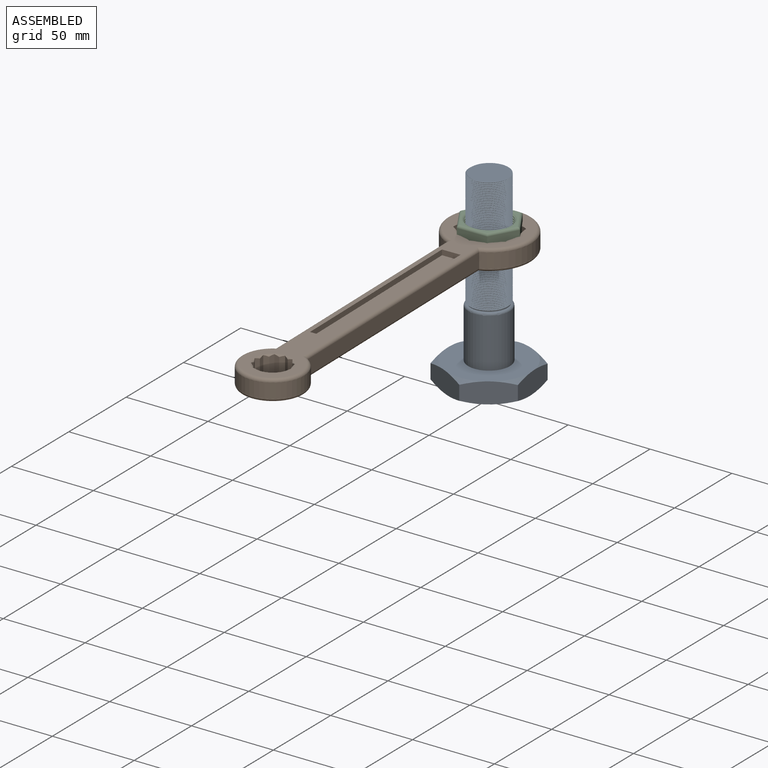
[diagram: assembled view]
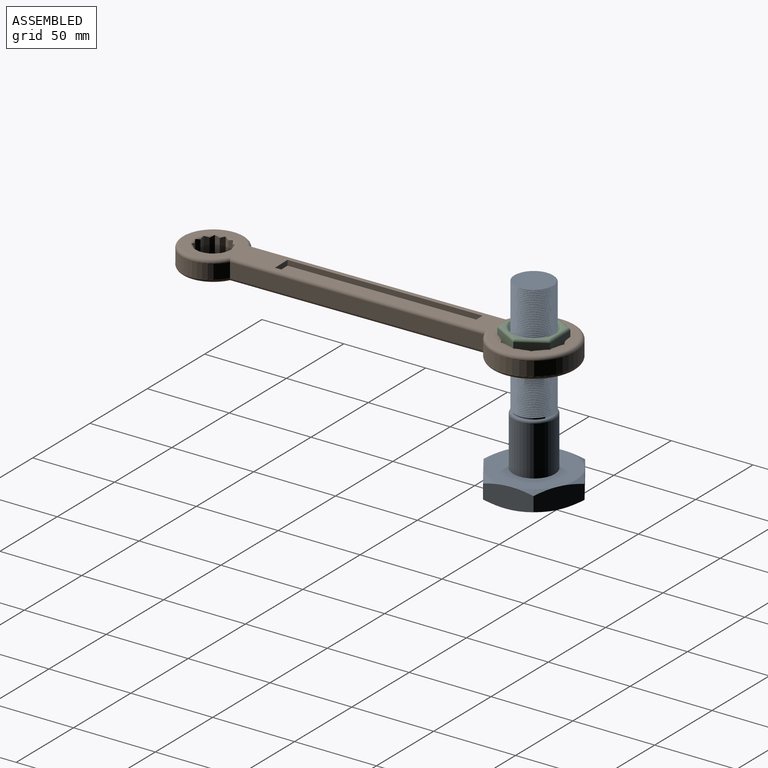
[diagram: assembled view, second angle]
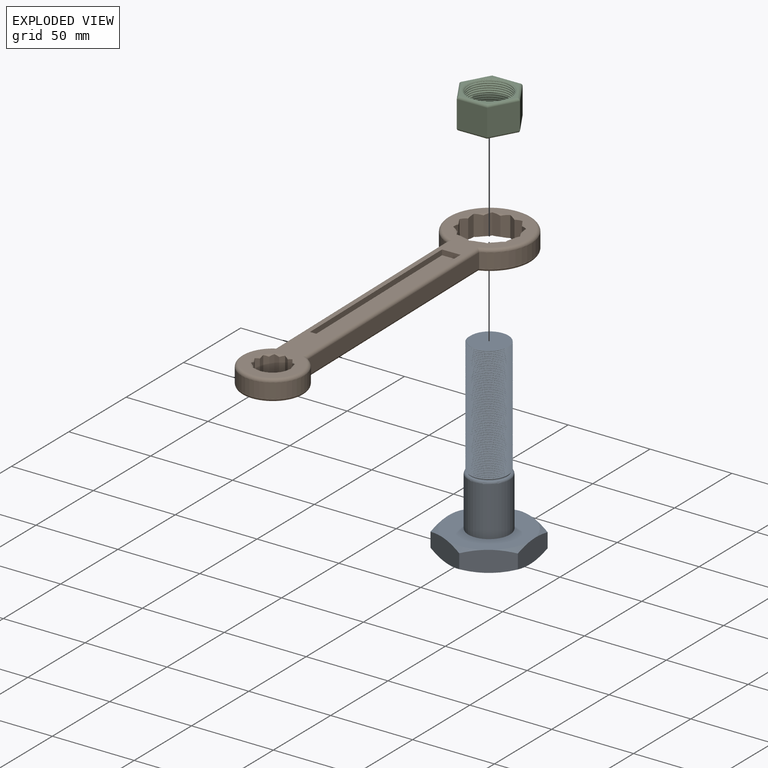
[diagram: exploded view]
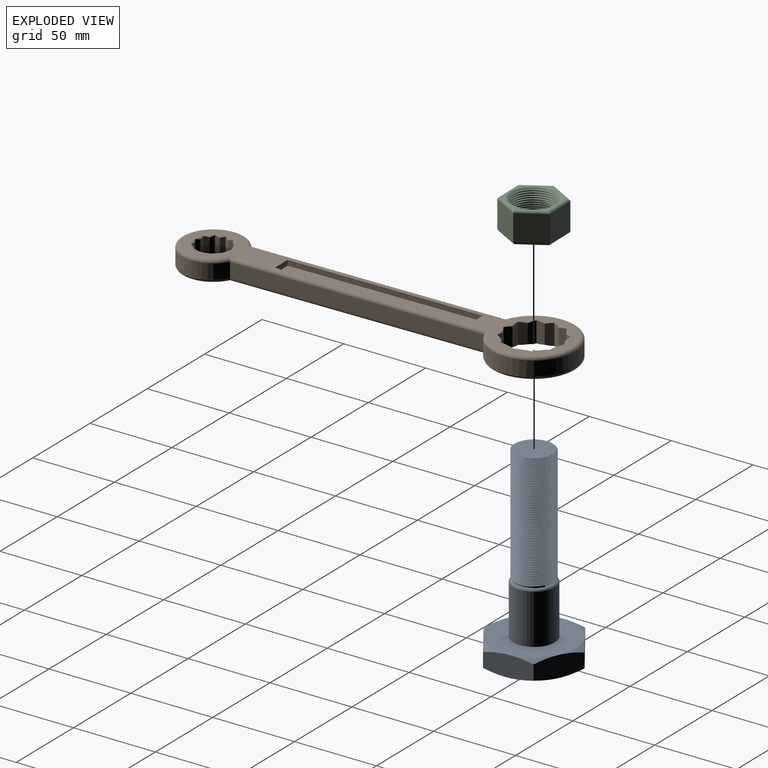
[diagram: exploded view, second angle]
ASSEMBLY  parts=3 mates=2
PART A: 28 faces, bbox 60.3x118.5x60.4 mm
  f0: plane 27.17x16.44mm, normal (0.5,0,-0.87), area 334.7mm2, adj f1,f5,f6,f11,f16,f18,f26,f27
  f1: plane 31.12x14.5mm, normal (1,0,0), area 334.7mm2, adj f0,f2,f6,f11,f24,f25,f26,f27
  f2: plane 27.17x16.44mm, normal (0.5,0,0.87), area 334.7mm2, adj f1,f3,f6,f11,f22,f23,f24,f25
  f3: plane 27.17x16.44mm, normal (-0.5,0,0.87), area 334.7mm2, adj f2,f4,f6,f11,f20,f21,f22,f23
  f4: plane 31.12x14.5mm, normal (-1,0,0), area 334.7mm2, adj f3,f5,f6,f11,f17,f19,f20,f21
  f5: plane 27.17x16.44mm, normal (-0.5,0,-0.87), area 334.7mm2, adj f0,f4,f6,f11,f16,f17,f18,f19
  f6: plane 50.95x50.8mm, normal (0,1,0), area 1530.6mm2, adj f0,f1,f2,f3,f4,f5,f12,f18
  f7: cylinder r=11.16mm len=71.73mm, axis (0,-1,0), area 1669.5mm2, adj f8,f9,f10,f14,f15
  f8: bspline ~72.17x27.45mm, area 4530.8mm2, adj f7,f9,f10,f14,f15
  f9: bspline ~71.85x27.45mm, area 4476.9mm2, adj f7,f8,f14,f15
  f10: plane 22.35x22.35mm, normal (0,1,0), area 0.8mm2, adj f7,f8,f13,f14
  f11: plane 50.95x50.8mm, normal (0,-1,0), area 2037.3mm2, adj f0,f1,f2,f3,f4,f5,f16,f17
  f12: cylinder r=12.7mm len=30.23mm, axis (0,-1,0), area 2411.9mm2, adj f6,f13
  f13: torus R=11.18mm, axis (0,1,0), area 182.7mm2, adj f10,f12
  f14: plane 0.83x0.72mm, normal (0,0,1), area 0.3mm2, adj f7,f8,f9,f10
  f15: plane 23.49x23.48mm, normal (0,1,0), area 414.2mm2, adj f7,f8,f9
  f16: cone r=38.09mm half-angle=63.3deg, axis (0,1,0), area 51.8mm2, adj f0,f5,f11
  f17: cone r=38.09mm half-angle=63.3deg, axis (0,1,0), area 51.8mm2, adj f4,f5,f11
  f18: cone r=38.09mm half-angle=63.3deg, axis (0,-1,0), area 51.8mm2, adj f0,f5,f6
  f19: cone r=38.09mm half-angle=63.3deg, axis (0,-1,0), area 51.8mm2, adj f4,f5,f6
  f20: cone r=38.09mm half-angle=63.3deg, axis (0,1,0), area 51.8mm2, adj f3,f4,f11
  f21: cone r=38.09mm half-angle=63.3deg, axis (0,-1,0), area 51.8mm2, adj f3,f4,f6
  f22: cone r=38.09mm half-angle=63.3deg, axis (0,1,0), area 51.8mm2, adj f2,f3,f11
  f23: cone r=38.09mm half-angle=63.3deg, axis (0,-1,0), area 51.8mm2, adj f2,f3,f6
  f24: cone r=38.09mm half-angle=63.3deg, axis (0,1,0), area 51.8mm2, adj f1,f2,f11
  f25: cone r=38.09mm half-angle=63.3deg, axis (0,-1,0), area 51.8mm2, adj f1,f2,f6
  f26: cone r=38.09mm half-angle=63.3deg, axis (0,1,0), area 51.8mm2, adj f0,f1,f11
  f27: cone r=38.09mm half-angle=63.3deg, axis (0,-1,0), area 51.8mm2, adj f0,f1,f6
PART B: 102 faces, bbox 241.9x55.2x12.9 mm
  f0: torus R=17.91mm, axis (0,0,1), area 6.3mm2, adj f23,f78,f79
  f1: torus R=17.91mm, axis (0,0,1), area 6.3mm2, adj f23,f80,f81
  f2: torus R=17.91mm, axis (0,0,1), area 6.3mm2, adj f23,f82,f83
  f3: torus R=17.91mm, axis (0,0,1), area 6.3mm2, adj f23,f84,f85
  f4: torus R=17.91mm, axis (0,0,1), area 6.3mm2, adj f23,f86,f87
  f5: torus R=17.91mm, axis (0,0,1), area 6.3mm2, adj f23,f88,f89
  f6: torus R=17.91mm, axis (0,0,1), area 6.3mm2, adj f23,f90,f91
  f7: torus R=17.91mm, axis (0,0,1), area 6.3mm2, adj f23,f92,f93
  f8: torus R=17.91mm, axis (0,0,1), area 6.3mm2, adj f23,f94,f95
  f9: torus R=17.91mm, axis (0,0,1), area 6.3mm2, adj f23,f96,f97
  f10: torus R=17.91mm, axis (0,0,1), area 6.3mm2, adj f23,f98,f99
  f11: torus R=17.91mm, axis (0,0,1), area 6.3mm2, adj f24,f78,f79
  f12: torus R=17.91mm, axis (0,0,1), area 6.3mm2, adj f24,f80,f81
  f13: torus R=17.91mm, axis (0,0,1), area 6.3mm2, adj f24,f82,f83
  f14: torus R=17.91mm, axis (0,0,1), area 6.3mm2, adj f24,f84,f85
  f15: torus R=17.91mm, axis (0,0,1), area 6.3mm2, adj f24,f86,f87
  f16: torus R=17.91mm, axis (0,0,1), area 6.3mm2, adj f24,f88,f89
  f17: torus R=17.91mm, axis (0,0,1), area 6.3mm2, adj f24,f90,f91
  f18: torus R=17.91mm, axis (0,0,1), area 6.3mm2, adj f24,f92,f93
  f19: torus R=17.91mm, axis (0,0,1), area 6.3mm2, adj f24,f94,f95
  f20: torus R=17.91mm, axis (0,0,1), area 6.3mm2, adj f24,f96,f97
  f21: torus R=17.91mm, axis (0,0,1), area 6.3mm2, adj f24,f98,f99
  f22: torus R=17.91mm, axis (0,0,1), area 6.3mm2, adj f24,f100,f101
  f23: plane 234.03x46.74mm, normal (0,0,-1), area 1724.5mm2, adj f0,f1,f2,f3,f4,f5,f6,f7
  f24: plane 234.03x46.74mm, normal (0,0,1), area 2198.7mm2, adj f11,f12,f13,f14,f15,f16,f17,f18
  f25: cylinder r=19.05mm len=38.1mm, axis (0,0,-1), area 860.6mm2, adj f26,f28,f40,f50
  f26: plane 153.6x8.64mm, normal (0,-1,0), area 1326.5mm2, adj f25,f27,f43,f51
  f27: cylinder r=25.4mm len=50.8mm, axis (0,0,-1), area 1208.8mm2, adj f26,f28,f42,f53
  f28: plane 153.68x8.64mm, normal (0,1,0), area 1327.2mm2, adj f25,f27,f39,f52
  f29: plane 117.85x3.18mm, normal (0,-1,0), area 374.2mm2, adj f24,f30,f32,f33
  f30: plane 11.2x3.18mm, normal (1,0,0), area 35.6mm2, adj f24,f29,f31,f33
  f31: plane 117.85x3.18mm, normal (0,1,0), area 374.2mm2, adj f24,f30,f32,f33
  f32: plane 11.2x3.18mm, normal (-1,0,0), area 35.6mm2, adj f24,f29,f31,f33
  f33: plane 117.85x11.2mm, normal (0,0,1), area 1320mm2, adj f29,f30,f31,f32
  f34: plane 118.16x1.14mm, normal (0,1,0), area 135.1mm2, adj f35,f37,f38,f41
  f35: plane 10.88x1.14mm, normal (1,0,0), area 12.4mm2, adj f34,f36,f38,f44
  f36: plane 118.16x1.14mm, normal (0,-1,0), area 135.1mm2, adj f35,f37,f38,f46
  f37: plane 10.88x1.14mm, normal (-1,0,0), area 12.4mm2, adj f34,f36,f38,f45
  f38: plane 118.16x10.88mm, normal (0,0,-1), area 1285.9mm2, adj f34,f35,f36,f37
  f39: cylinder r=2.03mm len=156.3mm, axis (-1,0,0), area 493.5mm2, adj f23,f28,f40,f42
  f40: torus R=17.02mm, axis (0,0,1), area 308.4mm2, adj f23,f25,f39,f43
  f41: cylinder r=2.03mm len=121.96mm, axis (-1,0,0), area 365.6mm2, adj f34,f43,f44,f45
  f42: torus R=23.37mm, axis (0,0,1), area 437mm2, adj f23,f27,f39,f43
  f43: cylinder r=2.03mm len=156.23mm, axis (1,0,0), area 477mm2, adj f23,f26,f40,f41,f42,f44,f45
  f44: cylinder r=2.03mm len=14.81mm, axis (0,1,0), area 39.4mm2, adj f23,f35,f41,f43,f46
  f45: cylinder r=2.03mm len=14.81mm, axis (0,-1,0), area 39.4mm2, adj f23,f37,f41,f43,f46
  f46: cylinder r=2.03mm len=122.23mm, axis (1,0,0), area 381.9mm2, adj f23,f36,f44,f45
  f47: torus R=17.91mm, axis (0,0,1), area 6.3mm2, adj f23,f100,f101
  f48: torus R=11.56mm, axis (0,0,1), area 87.9mm2, adj f23,f54,f55,f56,f57,f58,f59,f60
  f49: torus R=11.56mm, axis (0,0,1), area 87.9mm2, adj f24,f54,f55,f56,f57,f58,f59,f60
  f50: torus R=17.02mm, axis (0,0,1), area 308.4mm2, adj f24,f25,f51,f52
  f51: cylinder r=2.03mm len=156.23mm, axis (-1,0,0), area 493.3mm2, adj f24,f26,f50,f53
  f52: cylinder r=2.03mm len=156.3mm, axis (1,0,0), area 493.5mm2, adj f24,f28,f50,f53
  f53: torus R=23.37mm, axis (0,0,1), area 437mm2, adj f24,f27,f51,f52
  f54: plane 12.66x3.07mm, normal (0,1,0), area 34.9mm2, adj f48,f49,f55,f77
  f55: plane 12.67x2.68mm, normal (0.5,0.87,0), area 34.9mm2, adj f48,f49,f54,f56
  f56: plane 12.67x2.68mm, normal (-0.5,0.87,0), area 34.9mm2, adj f48,f49,f55,f57
  f57: plane 12.67x3.08mm, normal (0,1,0), area 34.9mm2, adj f48,f49,f56,f58
  f58: plane 12.67x2.68mm, normal (-0.87,0.5,0), area 34.9mm2, adj f48,f49,f57,f59
  f59: plane 12.67x2.68mm, normal (-0.5,0.87,0), area 34.9mm2, adj f48,f49,f58,f60
  f60: plane 12.66x3.07mm, normal (-1,0,0), area 34.9mm2, adj f48,f49,f59,f61
  f61: plane 12.67x2.68mm, normal (-0.87,0.5,0), area 34.9mm2, adj f48,f49,f60,f62
  f62: plane 12.67x2.68mm, normal (-0.87,-0.5,0), area 34.9mm2, adj f48,f49,f61,f63
  f63: plane 12.67x3.08mm, normal (-1,0,0), area 34.9mm2, adj f48,f49,f62,f64
  f64: plane 12.67x2.68mm, normal (-0.5,-0.87,0), area 34.9mm2, adj f48,f49,f63,f65
  f65: plane 12.67x2.68mm, normal (-0.87,-0.5,0), area 34.9mm2, adj f48,f49,f64,f66
  f66: plane 12.67x3.08mm, normal (0,-1,0), area 34.9mm2, adj f48,f49,f65,f67
  f67: plane 12.67x2.68mm, normal (-0.5,-0.87,0), area 34.9mm2, adj f48,f49,f66,f68
  f68: plane 12.67x2.68mm, normal (0.5,-0.87,0), area 34.9mm2, adj f48,f49,f67,f69
  f69: plane 12.66x3.07mm, normal (0,-1,0), area 34.9mm2, adj f48,f49,f68,f70
  f70: plane 12.67x2.68mm, normal (0.87,-0.5,0), area 34.9mm2, adj f48,f49,f69,f71
  f71: plane 12.67x2.68mm, normal (0.5,-0.87,0), area 34.9mm2, adj f48,f49,f70,f72
  f72: plane 12.67x3.08mm, normal (1,0,0), area 34.9mm2, adj f48,f49,f71,f73
  f73: plane 12.67x2.68mm, normal (0.87,-0.5,0), area 34.9mm2, adj f48,f49,f72,f74
  f74: plane 12.67x2.68mm, normal (0.87,0.5,0), area 34.9mm2, adj f48,f49,f73,f75
  f75: plane 12.66x3.07mm, normal (1,0,0), area 34.9mm2, adj f48,f49,f74,f76
  f76: plane 12.67x2.68mm, normal (0.5,0.87,0), area 34.9mm2, adj f48,f49,f75,f77
  f77: plane 12.67x2.68mm, normal (0.87,0.5,0), area 34.9mm2, adj f48,f49,f54,f76
  f78: plane 12.87x5.08mm, normal (-1,0,0), area 60.6mm2, adj f0,f11,f23,f24,f79,f101
  f79: plane 12.87x4.42mm, normal (-0.87,0.5,0), area 60.6mm2, adj f0,f11,f23,f24,f78,f80
  f80: plane 12.87x4.42mm, normal (-0.87,-0.5,0), area 60.6mm2, adj f1,f12,f23,f24,f79,f81
  f81: plane 12.87x5.08mm, normal (-1,0,0), area 60.6mm2, adj f1,f12,f23,f24,f80,f82
  f82: plane 12.87x4.42mm, normal (-0.5,-0.87,0), area 60.6mm2, adj f2,f13,f23,f24,f81,f83
  f83: plane 12.87x4.42mm, normal (-0.87,-0.5,0), area 60.6mm2, adj f2,f13,f23,f24,f82,f84
  f84: plane 12.87x5.08mm, normal (0,-1,0), area 60.6mm2, adj f3,f14,f23,f24,f83,f85
  f85: plane 12.87x4.42mm, normal (-0.5,-0.87,0), area 60.6mm2, adj f3,f14,f23,f24,f84,f86
  f86: plane 12.87x4.42mm, normal (0.5,-0.87,0), area 60.6mm2, adj f4,f15,f23,f24,f85,f87
  f87: plane 12.87x5.08mm, normal (0,-1,0), area 60.6mm2, adj f4,f15,f23,f24,f86,f88
  f88: plane 12.87x4.42mm, normal (0.87,-0.5,0), area 60.6mm2, adj f5,f16,f23,f24,f87,f89
  f89: plane 12.87x4.42mm, normal (0.5,-0.87,0), area 60.6mm2, adj f5,f16,f23,f24,f88,f90
  f90: plane 12.87x5.08mm, normal (1,0,0), area 60.6mm2, adj f6,f17,f23,f24,f89,f91
  f91: plane 12.87x4.42mm, normal (0.87,-0.5,0), area 60.6mm2, adj f6,f17,f23,f24,f90,f92
  f92: plane 12.87x4.42mm, normal (0.87,0.5,0), area 60.6mm2, adj f7,f18,f23,f24,f91,f93
  f93: plane 12.87x5.08mm, normal (1,0,0), area 60.6mm2, adj f7,f18,f23,f24,f92,f94
  f94: plane 12.87x4.42mm, normal (0.5,0.87,0), area 60.6mm2, adj f8,f19,f23,f24,f93,f95
  f95: plane 12.87x4.42mm, normal (0.87,0.5,0), area 60.6mm2, adj f8,f19,f23,f24,f94,f96
  f96: plane 12.87x5.08mm, normal (0,1,0), area 60.6mm2, adj f9,f20,f23,f24,f95,f97
  f97: plane 12.87x4.42mm, normal (0.5,0.87,0), area 60.6mm2, adj f9,f20,f23,f24,f96,f98
  f98: plane 12.87x4.42mm, normal (-0.5,0.87,0), area 60.6mm2, adj f10,f21,f23,f24,f97,f99
  f99: plane 12.87x5.08mm, normal (0,1,0), area 60.6mm2, adj f10,f21,f23,f24,f98,f100
  f100: plane 12.87x4.42mm, normal (-0.87,0.5,0), area 60.6mm2, adj f22,f23,f24,f47,f99,f101
  f101: plane 12.87x4.42mm, normal (-0.5,0.87,0), area 60.6mm2, adj f22,f23,f24,f47,f78,f100
PART C: 39 faces, bbox 33.1x36.7x19.2 mm
  f0: plane 16x15.88mm, normal (0.5,-0.87,0), area 293.3mm2, adj f1,f18,f24,f32
  f1: plane 18.33x16mm, normal (1,0,0), area 293.3mm2, adj f0,f2,f22,f30
  f2: plane 16x15.88mm, normal (0.5,0.87,0), area 293.3mm2, adj f1,f3,f23,f31
  f3: plane 16x15.88mm, normal (-0.5,0.87,0), area 293.3mm2, adj f2,f4,f25,f33
  f4: plane 18.33x16mm, normal (-1,0,0), area 293.3mm2, adj f3,f18,f27,f35
  f5: cylinder r=12.7mm len=25.4mm, axis (0,0,-1), area 60.6mm2, adj f6,f21,f36,f37
  f6: cylinder r=12.7mm len=25.4mm, axis (0,0,-1), area 35.3mm2, adj f5,f7,f37,f38
  f7: cylinder r=12.7mm len=25.4mm, axis (0,0,-1), area 35.3mm2, adj f6,f8,f37,f38
  f8: cylinder r=12.7mm len=25.4mm, axis (0,0,-1), area 35.3mm2, adj f7,f9,f37,f38
  f9: cylinder r=12.7mm len=25.4mm, axis (0,0,-1), area 35.4mm2, adj f8,f10,f37,f38
  f10: cylinder r=12.7mm len=25.4mm, axis (0,0,-1), area 35.3mm2, adj f9,f11,f37,f38
  f11: cylinder r=12.7mm len=25.4mm, axis (0,0,-1), area 35.4mm2, adj f10,f12,f37,f38
  f12: cylinder r=12.7mm len=25.4mm, axis (0,0,-1), area 35.3mm2, adj f11,f13,f37,f38
  f13: cylinder r=12.7mm len=25.4mm, axis (0,0,-1), area 35.3mm2, adj f12,f14,f37,f38
  f14: cylinder r=12.7mm len=25.4mm, axis (0,0,-1), area 35.4mm2, adj f13,f15,f37,f38
  f15: cylinder r=12.7mm len=25.4mm, axis (0,0,-1), area 35.3mm2, adj f14,f16,f37,f38
  f16: cylinder r=12.7mm len=25.4mm, axis (0,0,-1), area 35.3mm2, adj f15,f17,f37,f38
  f17: cylinder r=12.7mm len=25.4mm, axis (0,0,-1), area 23.9mm2, adj f16,f28,f37,f38
  f18: plane 16x15.88mm, normal (-0.5,-0.87,0), area 293.3mm2, adj f0,f4,f26,f34
  f19: plane 33.14x28.7mm, normal (0,0,1), area 77.8mm2, adj f29,f30,f31,f32,f33,f34,f35
  f20: plane 33.14x28.7mm, normal (0,0,-1), area 77.8mm2, adj f21,f22,f23,f24,f25,f26,f27
  f21: torus R=14.22mm, axis (0,0,1), area 199.4mm2, adj f5,f20
  f22: cylinder r=1.52mm len=18.33mm, axis (0,1,0), area 41.8mm2, adj f1,f20,f23,f24
  f23: cylinder r=1.52mm len=16.64mm, axis (-0.87,0.5,0), area 41.8mm2, adj f2,f20,f22,f25
  f24: cylinder r=1.52mm len=16.64mm, axis (0.87,0.5,0), area 41.8mm2, adj f0,f20,f22,f26
  f25: cylinder r=1.52mm len=16.64mm, axis (-0.87,-0.5,0), area 41.8mm2, adj f3,f20,f23,f27
  f26: cylinder r=1.52mm len=16.64mm, axis (0.87,-0.5,0), area 41.8mm2, adj f18,f20,f24,f27
  f27: cylinder r=1.52mm len=18.33mm, axis (0,-1,0), area 41.8mm2, adj f4,f20,f25,f26
  f28: torus R=14.22mm, axis (0,0,1), area 14.4mm2, adj f17,f29,f37,f38
  f29: torus R=14.22mm, axis (0,0,1), area 134.8mm2, adj f19,f28,f37,f38
  f30: cylinder r=1.52mm len=18.33mm, axis (0,-1,0), area 41.8mm2, adj f1,f19,f31,f32
  f31: cylinder r=1.52mm len=16.64mm, axis (0.87,-0.5,0), area 41.8mm2, adj f2,f19,f30,f33
  f32: cylinder r=1.52mm len=16.64mm, axis (-0.87,-0.5,0), area 41.8mm2, adj f0,f19,f30,f34
  f33: cylinder r=1.52mm len=16.64mm, axis (0.87,0.5,0), area 41.8mm2, adj f3,f19,f31,f35
  f34: cylinder r=1.52mm len=16.64mm, axis (-0.87,0.5,0), area 41.8mm2, adj f18,f19,f32,f35
  f35: cylinder r=1.52mm len=18.33mm, axis (0,1,0), area 41.8mm2, adj f4,f19,f33,f34
  f36: plane 0.83x0.72mm, normal (0,1,0), area 0.3mm2, adj f5,f37,f38
  f37: bspline ~30.98x26.83mm, area 891mm2, adj f5,f6,f7,f8,f9,f10,f11,f12
  f38: bspline ~26.83x26.67mm, area 862.8mm2, adj f6,f7,f8,f9,f10,f11,f12,f13
PLACE A rot(axis=(0.75,0.47,0.47),106.5deg) t=(8.6,-2.67,-133.64)mm fixed
PLACE B rot(axis=(0,0,1),90.9deg) t=(10.45,-98.86,-73.33)mm
PLACE C rot(axis=(0,0,1),90.9deg) t=(8.91,-2.58,-65.07)mm
MATE fastened B.f27 <-> C.f5  axis (0,0,1) through (8.91,-2.58,-60.63)mm
MATE cylindrical A.f15 <-> C.f5  axis (0,0,1) through (8.91,-2.58,-30.17)mm
